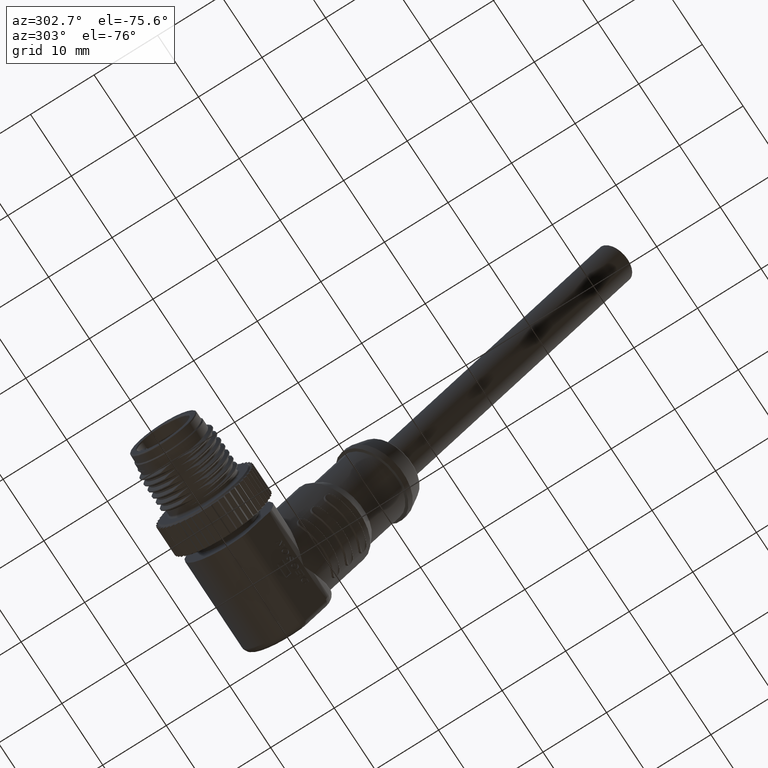
[diagram: clean part render]
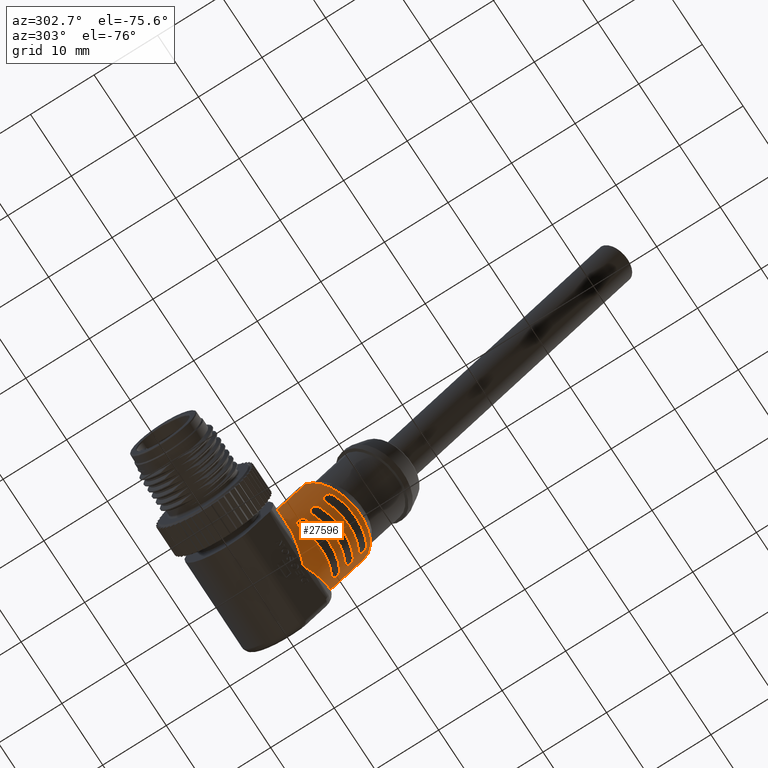
[diagram: same view with one face highlighted and labeled with its STEP entity id]
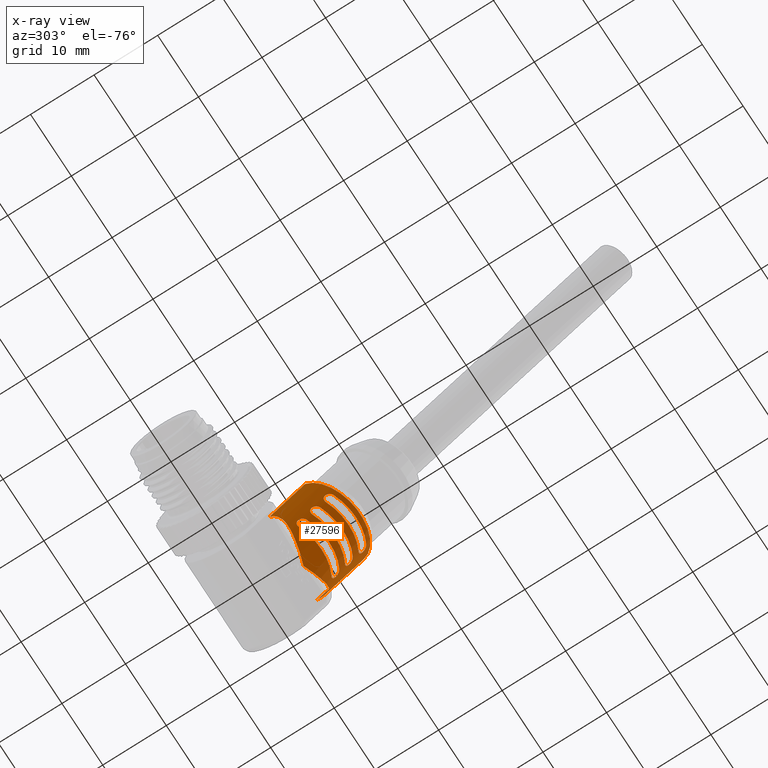
[diagram: x-ray of the same camera — body ghosted, the highlighted face saturated]
A machine part, auxiliary view. The second image highlights one B-rep face of the part: STEP entity #27596.
The next image is the same camera in x-ray: the body ghosted, the highlighted face saturated — about 0% of this face is hidden behind the body in this view.
In plain terms, the highlighted cylindrical surface (partial cylindrical patch) has radius 6.4 mm, axis along (0, -0.7071, 0.7071).
Its self-contained STEP definition (entity closure, byte-faithful):
#5581=CARTESIAN_POINT('',(2.106379701677E1,-6.706777544916E0,
-2.004777970267E0));
#5582=CARTESIAN_POINT('',(2.124758970223E1,-6.675542171109E0,
-2.109272685243E0));
#5583=CARTESIAN_POINT('',(2.162190139354E1,-6.596203580795E0,
-2.312919365202E0));
#5584=CARTESIAN_POINT('',(2.220776745059E1,-6.425941768573E0,
-2.599160807562E0));
#5585=CARTESIAN_POINT('',(2.260159718548E1,-6.283194560477E0,
-2.767772238710E0));
#5586=CARTESIAN_POINT('',(2.28E1,-6.204768961969E0,-2.846197837219E0));
#5596=CARTESIAN_POINT('',(1.64E1,-4.949747468306E0,4.949747468306E0));
#5597=CARTESIAN_POINT('',(1.64E1,-5.071610581378E0,4.827884355234E0));
#5598=CARTESIAN_POINT('',(1.641396668491E1,-5.307274914199E0,4.574156412381E0));
#5599=CARTESIAN_POINT('',(1.647723373911E1,-5.632945235219E0,4.166747536764E0));
#5600=CARTESIAN_POINT('',(1.658464871978E1,-5.931787065689E0,3.729439505394E0));
#5601=CARTESIAN_POINT('',(1.673811078773E1,-6.200731734331E0,3.263373732487E0));
#5602=CARTESIAN_POINT('',(1.694146451900E1,-6.438523613675E0,2.765733168702E0));
#5603=CARTESIAN_POINT('',(1.719842662722E1,-6.641202867373E0,2.237103298362E0));
#5604=CARTESIAN_POINT('',(1.751452082478E1,-6.804779979946E0,1.676670458424E0));
#5605=CARTESIAN_POINT('',(1.789178747652E1,-6.923190749345E0,1.091404134618E0));
#5606=CARTESIAN_POINT('',(1.833821247708E1,-6.992863410430E0,
4.804561207492E-1));
#5607=CARTESIAN_POINT('',(1.886095894772E1,-7.007555076917E0,
-1.486728500513E-1));
#5608=CARTESIAN_POINT('',(1.942556542731E1,-6.968185150515E0,
-7.421167531548E-1));
#5609=CARTESIAN_POINT('',(2.000150043526E1,-6.890347522086E0,
-1.266165576088E0));
#5610=CARTESIAN_POINT('',(2.056498272768E1,-6.794143214092E0,
-1.699904179540E0));
#5611=CARTESIAN_POINT('',(2.090289663993E1,-6.734122394922E0,
-1.913298600593E0));
#5612=CARTESIAN_POINT('',(2.106379701677E1,-6.706777544916E0,
-2.004777970267E0));
#5850=CARTESIAN_POINT('',(2.28E1,-6.204768961969E0,-2.846197837219E0));
#5851=CARTESIAN_POINT('',(2.299848508600E1,-6.283227081134E0,
-2.767739718053E0));
#5852=CARTESIAN_POINT('',(2.339242445813E1,-6.426006787350E0,
-2.599074367432E0));
#5853=CARTESIAN_POINT('',(2.397829343061E1,-6.596250782727E0,
-2.312817193523E0));
#5854=CARTESIAN_POINT('',(2.435249294623E1,-6.675556275075E0,
-2.109225565056E0));
#5855=CARTESIAN_POINT('',(2.453620275281E1,-6.706777559454E0,
-2.004777984805E0));
#5857=CARTESIAN_POINT('',(2.92E1,-4.242644279019E0,4.242637688462E0));
#5858=CARTESIAN_POINT('',(2.92E1,-4.245905503571E0,4.242238467038E0));
#5859=CARTESIAN_POINT('',(2.920000326813E1,-4.251254656587E0,4.238042791162E0));
#5860=CARTESIAN_POINT('',(2.919999346374E1,-4.252759458347E0,4.238771540832E0));
#5861=CARTESIAN_POINT('',(2.919999346374E1,-4.253160470095E0,4.235496145182E0));
#5863=CARTESIAN_POINT('',(2.919999346374E1,-4.253160470095E0,4.235496145182E0));
#5864=CARTESIAN_POINT('',(2.919957018367E1,-4.542576948639E0,4.109775078249E0));
#5865=CARTESIAN_POINT('',(2.915718343613E1,-5.078412244745E0,3.835406624438E0));
#5866=CARTESIAN_POINT('',(2.899855848405E1,-5.715818799077E0,3.379949833385E0));
#5867=CARTESIAN_POINT('',(2.876973085846E1,-6.207997215209E0,2.896251902885E0));
#5868=CARTESIAN_POINT('',(2.849400082429E1,-6.556118879097E0,2.392525240747E0));
#5869=CARTESIAN_POINT('',(2.829822411427E1,-6.694073037640E0,2.054456347680E0));
#5870=CARTESIAN_POINT('',(2.82E1,-6.741763290868E0,1.883780170271E0));
#5872=CARTESIAN_POINT('',(2.82E1,-6.741763290868E0,1.883780170271E0));
#5873=CARTESIAN_POINT('',(2.810412547372E1,-6.788312760620E0,1.717186683760E0));
#5874=CARTESIAN_POINT('',(2.789262172541E1,-6.872238351909E0,1.369736834348E0));
#5875=CARTESIAN_POINT('',(2.750298103768E1,-6.961957711232E0,
8.023916125648E-1));
#5876=CARTESIAN_POINT('',(2.705604025454E1,-7.004241760261E0,
2.250567305640E-1));
#5877=CARTESIAN_POINT('',(2.656310363177E1,-6.998971101590E0,
-3.401723223404E-1));
#5878=CARTESIAN_POINT('',(2.604116939611E1,-6.952034234843E0,
-8.684227422553E-1));
#5879=CARTESIAN_POINT('',(2.551116648388E1,-6.875893210456E0,
-1.336613062746E0));
#5880=CARTESIAN_POINT('',(2.499441241509E1,-6.786818369271E0,
-1.726305229894E0));
#5881=CARTESIAN_POINT('',(2.468368001586E1,-6.731841161964E0,
-1.920930292869E0));
#5882=CARTESIAN_POINT('',(2.453620275281E1,-6.706777559454E0,
-2.004777984805E0));
#5884=DIRECTION('',(2.384759056894E-13,-7.071067811865E-1,7.071067811865E-1));
#5885=VECTOR('',#5884,8.000000000001E0);
#5886=CARTESIAN_POINT('',(1.64E1,-4.949747468306E0,4.949747468306E0));
#5887=LINE('',#5886,#5885);
#5888=DIRECTION('',(2.115838467325E-13,7.071064150444E-1,-7.071071473285E-1));
#5889=VECTOR('',#5888,8.999999580517E0);
#5890=CARTESIAN_POINT('',(2.92E1,-1.060660171780E1,1.060660171780E1));
#5891=LINE('',#5890,#5889);
#5892=CARTESIAN_POINT('',(2.28E1,-1.060660171780E1,1.060660171780E1));
#5893=DIRECTION('',(0.E0,7.071067811865E-1,-7.071067811865E-1));
#5894=DIRECTION('',(1.E0,0.E0,0.E0));
#5895=AXIS2_PLACEMENT_3D('',#5892,#5893,#5894);
#6037=CARTESIAN_POINT('',(2.28E1,-6.646803743154E0,6.646803743154E0));
#6038=DIRECTION('',(0.E0,7.071067811865E-1,-7.071067811865E-1));
#6039=DIRECTION('',(6.207946932383E-1,-5.543527526978E-1,-5.543527526978E-1));
#6040=AXIS2_PLACEMENT_3D('',#6037,#6038,#6039);
#6096=CARTESIAN_POINT('',(2.28E1,-7.848885271171E0,7.848885271171E0));
#6097=DIRECTION('',(0.E0,-7.071067811865E-1,7.071067811865E-1));
#6098=DIRECTION('',(-6.207946932387E-1,-5.543527526976E-1,-5.543527526976E-1));
#6099=AXIS2_PLACEMENT_3D('',#6096,#6097,#6098);
#6106=CARTESIAN_POINT('',(1.882691396327E1,-1.019466136042E1,3.098946125888E0));
#6107=CARTESIAN_POINT('',(1.875666623159E1,-1.015532773803E1,3.138279782362E0));
#6108=CARTESIAN_POINT('',(1.862565567665E1,-1.009802556975E1,3.234286758147E0));
#6109=CARTESIAN_POINT('',(1.844829654239E1,-1.007089631908E1,3.431841998542E0));
#6110=CARTESIAN_POINT('',(1.831185625374E1,-1.011237913796E1,3.658747521453E0));
#6111=CARTESIAN_POINT('',(1.822486895062E1,-1.022211643811E1,3.892779713007E0));
#6112=CARTESIAN_POINT('',(1.819551911810E1,-1.039224796842E1,4.106022241937E0));
#6113=CARTESIAN_POINT('',(1.822563826090E1,-1.060574237299E1,4.275285003397E0));
#6114=CARTESIAN_POINT('',(1.831299026696E1,-1.083914749348E1,4.383936976312E0));
#6115=CARTESIAN_POINT('',(1.844918284699E1,-1.106492283170E1,4.424724135190E0));
#6116=CARTESIAN_POINT('',(1.862589743697E1,-1.126155497070E1,4.397539013220E0));
#6117=CARTESIAN_POINT('',(1.875673002715E1,-1.135744495292E1,4.340325555442E0));
#6118=CARTESIAN_POINT('',(1.882691396327E1,-1.139674288844E1,4.301027653905E0));
#6130=CARTESIAN_POINT('',(2.677308603672E1,-1.139674288844E1,4.301027653906E0));
#6131=CARTESIAN_POINT('',(2.684333376758E1,-1.135740923242E1,4.340361275822E0));
#6132=CARTESIAN_POINT('',(2.697434432130E1,-1.126140225785E1,4.397663443806E0));
#6133=CARTESIAN_POINT('',(2.715170345484E1,-1.106384701941E1,4.424792695248E0));
#6134=CARTESIAN_POINT('',(2.728814374401E1,-1.083694149750E1,4.383309877842E0));
#6135=CARTESIAN_POINT('',(2.737513104835E1,-1.060290930552E1,4.273572578900E0));
#6136=CARTESIAN_POINT('',(2.740448088201E1,-1.038966677506E1,4.103441048739E0));
#6137=CARTESIAN_POINT('',(2.737436173972E1,-1.022040401204E1,3.889946643349E0));
#6138=CARTESIAN_POINT('',(2.728700973354E1,-1.011175203821E1,3.656541521745E0));
#6139=CARTESIAN_POINT('',(2.715081715319E1,-1.007096487909E1,3.430766182808E0));
#6140=CARTESIAN_POINT('',(2.697410256297E1,-1.009815000112E1,3.234134043556E0));
#6141=CARTESIAN_POINT('',(2.684326997280E1,-1.015536345890E1,3.138244061366E0));
#6142=CARTESIAN_POINT('',(2.677308603673E1,-1.019466136042E1,3.098946125888E0));
#6172=CARTESIAN_POINT('',(2.28E1,-4.525483399594E0,4.525483399594E0));
#6173=DIRECTION('',(0.E0,7.071067811865E-1,-7.071067811865E-1));
#6174=DIRECTION('',(6.207946932380E-1,-5.543527526979E-1,-5.543527526979E-1));
#6175=AXIS2_PLACEMENT_3D('',#6172,#6173,#6174);
#6231=CARTESIAN_POINT('',(1.882691396327E1,-8.073341016860E0,
9.776257823280E-1));
#6232=CARTESIAN_POINT('',(1.875666623236E1,-8.034007394915E0,1.016959438380E0));
#6233=CARTESIAN_POINT('',(1.862565567850E1,-7.976705226852E0,1.112966413036E0));
#6234=CARTESIAN_POINT('',(1.844829654441E1,-7.949575975463E0,1.310521652262E0));
#6235=CARTESIAN_POINT('',(1.831185625509E1,-7.991058793436E0,1.537427175027E0));
#6236=CARTESIAN_POINT('',(1.822486895111E1,-8.100796093126E0,1.771459367287E0));
#6237=CARTESIAN_POINT('',(1.819551911803E1,-8.270927623634E0,1.984701897257E0));
#6238=CARTESIAN_POINT('',(1.822563826068E1,-8.484422028742E0,2.153964659464E0));
#6239=CARTESIAN_POINT('',(1.831299026674E1,-8.717827149430E0,2.262616632584E0));
#6240=CARTESIAN_POINT('',(1.844918284646E1,-8.943602487383E0,2.303403791571E0));
#6241=CARTESIAN_POINT('',(1.862589743618E1,-9.140234626443E0,2.276218669922E0));
#6242=CARTESIAN_POINT('',(1.875673002681E1,-9.236124609182E0,2.219005212095E0));
#6243=CARTESIAN_POINT('',(1.882691396328E1,-9.275422544877E0,2.179707310345E0));
#6250=CARTESIAN_POINT('',(2.28E1,-5.727564927611E0,5.727564927611E0));
#6251=DIRECTION('',(0.E0,-7.071067811865E-1,7.071067811865E-1));
#6252=DIRECTION('',(-6.207946932378E-1,-5.543527526981E-1,-5.543527526981E-1));
#6253=AXIS2_PLACEMENT_3D('',#6250,#6251,#6252);
#6293=CARTESIAN_POINT('',(2.677308603672E1,-9.275422544877E0,2.179707310345E0));
#6294=CARTESIAN_POINT('',(2.684333376771E1,-9.236088888790E0,2.219040932340E0));
#6295=CARTESIAN_POINT('',(2.697434432161E1,-9.140081914038E0,2.276343100362E0));
#6296=CARTESIAN_POINT('',(2.715170345526E1,-8.942526675305E0,2.303472351686E0));
#6297=CARTESIAN_POINT('',(2.728814374429E1,-8.715621153350E0,2.261989534074E0));
#6298=CARTESIAN_POINT('',(2.737513104836E1,-8.481588961766E0,2.152252235164E0));
#6299=CARTESIAN_POINT('',(2.740448088195E1,-8.268346431913E0,1.982120705501E0));
#6300=CARTESIAN_POINT('',(2.737436173996E1,-8.099083669231E0,1.768626300890E0));
#6301=CARTESIAN_POINT('',(2.728700973435E1,-7.990431695257E0,1.535221179924E0));
#6302=CARTESIAN_POINT('',(2.715081715453E1,-7.949644535585E0,1.309445841061E0));
#6303=CARTESIAN_POINT('',(2.697410256428E1,-7.976829657093E0,1.112813701103E0));
#6304=CARTESIAN_POINT('',(2.684326997335E1,-8.034043115015E0,1.016923718107E0));
#6305=CARTESIAN_POINT('',(2.677308603672E1,-8.073341016860E0,
9.776257823279E-1));
#6312=CARTESIAN_POINT('',(2.28E1,-8.768124086713E0,8.768124086713E0));
#6313=DIRECTION('',(0.E0,7.071067811865E-1,-7.071067811865E-1));
#6314=DIRECTION('',(6.207946932372E-1,-5.543527526984E-1,-5.543527526984E-1));
#6315=AXIS2_PLACEMENT_3D('',#6312,#6313,#6314);
#6371=CARTESIAN_POINT('',(1.882691396328E1,-1.231598170398E1,5.220266469446E0));
#6372=CARTESIAN_POINT('',(1.875666623174E1,-1.227664808169E1,5.259600125847E0));
#6373=CARTESIAN_POINT('',(1.862565567706E1,-1.221934591347E1,5.355607101387E0));
#6374=CARTESIAN_POINT('',(1.844829654315E1,-1.219221666267E1,5.553162341141E0));
#6375=CARTESIAN_POINT('',(1.831185625451E1,-1.223369948105E1,5.780067863471E0));
#6376=CARTESIAN_POINT('',(1.822486895106E1,-1.234343678062E1,6.014100054855E0));
#6377=CARTESIAN_POINT('',(1.819551911809E1,-1.251356831055E1,6.227342584076E0));
#6378=CARTESIAN_POINT('',(1.822563826048E1,-1.272706271502E1,6.396605346027E0));
#6379=CARTESIAN_POINT('',(1.831299026626E1,-1.296046783560E1,6.505257319415E0));
#6380=CARTESIAN_POINT('',(1.844918284606E1,-1.318624317403E1,6.546044478732E0));
#6381=CARTESIAN_POINT('',(1.862589743613E1,-1.338287531355E1,6.518859357070E0));
#6382=CARTESIAN_POINT('',(1.875673002681E1,-1.347876529632E1,6.461645899227E0));
#6383=CARTESIAN_POINT('',(1.882691396327E1,-1.351806323199E1,6.422347997467E0));
#6390=CARTESIAN_POINT('',(2.28E1,-9.970205614730E0,9.970205614730E0));
#6391=DIRECTION('',(0.E0,-7.071067811865E-1,7.071067811865E-1));
#6392=DIRECTION('',(-6.207946932397E-1,-5.543527526969E-1,-5.543527526969E-1));
#6393=AXIS2_PLACEMENT_3D('',#6390,#6391,#6392);
#6433=CARTESIAN_POINT('',(2.677308603673E1,-1.351806323200E1,6.422347997466E0));
#6434=CARTESIAN_POINT('',(2.684333376866E1,-1.347872957537E1,6.461681619982E0));
#6435=CARTESIAN_POINT('',(2.697434432386E1,-1.338272259925E1,6.518983788287E0));
#6436=CARTESIAN_POINT('',(2.715170345743E1,-1.318516735945E1,6.546113038700E0));
#6437=CARTESIAN_POINT('',(2.728814374564E1,-1.295826183759E1,6.504630220222E0));
#6438=CARTESIAN_POINT('',(2.737513104897E1,-1.272422964644E1,6.394892920732E0));
#6439=CARTESIAN_POINT('',(2.740448088194E1,-1.251098711707E1,6.224761390641E0));
#6440=CARTESIAN_POINT('',(2.737436173937E1,-1.234172435503E1,6.011266985836E0));
#6441=CARTESIAN_POINT('',(2.728700973338E1,-1.223307238177E1,5.777861865081E0));
#6442=CARTESIAN_POINT('',(2.715081715346E1,-1.219228522271E1,5.552086526789E0));
#6443=CARTESIAN_POINT('',(2.697410256352E1,-1.221947034451E1,5.355454387618E0));
#6444=CARTESIAN_POINT('',(2.684326997305E1,-1.227668380229E1,5.259564405047E0));
#6445=CARTESIAN_POINT('',(2.677308603672E1,-1.231598170398E1,5.220266469446E0));
#15685=CARTESIAN_POINT('',(2.28E1,-6.204768961969E0,-2.846197837219E0));
#15686=VERTEX_POINT('',#15685);
#16667=CARTESIAN_POINT('',(2.82E1,-6.741763290868E0,1.883780170271E0));
#16668=VERTEX_POINT('',#16667);
#16669=VERTEX_POINT('',#5863);
#16670=CARTESIAN_POINT('',(2.453620275281E1,-6.706777559454E0,
-2.004777984805E0));
#16671=VERTEX_POINT('',#16670);
#16672=VERTEX_POINT('',#5581);
#16673=VERTEX_POINT('',#5596);
#16674=CARTESIAN_POINT('',(1.64E1,-1.060660171780E1,1.060660171780E1));
#16675=VERTEX_POINT('',#16674);
#16676=CARTESIAN_POINT('',(2.92E1,-1.060660171780E1,1.060660171780E1));
#16677=VERTEX_POINT('',#16676);
#16678=CARTESIAN_POINT('',(2.92E1,-4.242644279019E0,4.242637688462E0));
#16679=VERTEX_POINT('',#16678);
#16680=CARTESIAN_POINT('',(2.677308603672E1,-1.019466136042E1,
3.098946125888E0));
#16681=CARTESIAN_POINT('',(1.882691396328E1,-1.019466136042E1,
3.098946125888E0));
#16682=VERTEX_POINT('',#16680);
#16683=VERTEX_POINT('',#16681);
#16684=VERTEX_POINT('',#6130);
#16685=CARTESIAN_POINT('',(1.882691396327E1,-1.139674288844E1,
4.301027653907E0));
#16686=VERTEX_POINT('',#16685);
#16687=CARTESIAN_POINT('',(2.677308603672E1,-8.073341016861E0,
9.776257823273E-1));
#16688=CARTESIAN_POINT('',(1.882691396328E1,-8.073341016861E0,
9.776257823273E-1));
#16689=VERTEX_POINT('',#16687);
#16690=VERTEX_POINT('',#16688);
#16691=VERTEX_POINT('',#6293);
#16692=CARTESIAN_POINT('',(1.882691396328E1,-9.275422544879E0,
2.179707310343E0));
#16693=VERTEX_POINT('',#16692);
#16694=CARTESIAN_POINT('',(2.677308603672E1,-1.231598170398E1,
5.220266469443E0));
#16695=CARTESIAN_POINT('',(1.882691396328E1,-1.231598170398E1,
5.220266469443E0));
#16696=VERTEX_POINT('',#16694);
#16697=VERTEX_POINT('',#16695);
#16698=VERTEX_POINT('',#6433);
#16699=CARTESIAN_POINT('',(1.882691396327E1,-1.351806323199E1,
6.422347997470E0));
#16700=VERTEX_POINT('',#16699);
#27549=CARTESIAN_POINT('',(2.28E1,9.899494936612E-1,-9.899494936612E-1));
#27550=DIRECTION('',(0.E0,-7.071067811865E-1,7.071067811865E-1));
#27551=DIRECTION('',(-1.E0,0.E0,0.E0));
#27552=AXIS2_PLACEMENT_3D('',#27549,#27550,#27551);
#27553=CYLINDRICAL_SURFACE('',#27552,6.4E0);
#27554=ORIENTED_EDGE('',*,*,#27437,.T.);
#27555=ORIENTED_EDGE('',*,*,#27517,.T.);
#27556=ORIENTED_EDGE('',*,*,#27530,.T.);
#27557=ORIENTED_EDGE('',*,*,#27542,.F.);
#27558=ORIENTED_EDGE('',*,*,#27269,.F.);
#27559=ORIENTED_EDGE('',*,*,#27284,.F.);
#27560=ORIENTED_EDGE('',*,*,#27321,.T.);
#27562=ORIENTED_EDGE('',*,*,#27561,.F.);
#27563=ORIENTED_EDGE('',*,*,#27317,.T.);
#27564=EDGE_LOOP('',(#27554,#27555,#27556,#27557,#27558,#27559,#27560,#27562,
#27563));
#27565=FACE_OUTER_BOUND('',#27564,.F.);
#27567=ORIENTED_EDGE('',*,*,#27566,.F.);
#27569=ORIENTED_EDGE('',*,*,#27568,.F.);
#27571=ORIENTED_EDGE('',*,*,#27570,.F.);
#27573=ORIENTED_EDGE('',*,*,#27572,.F.);
#27574=EDGE_LOOP('',(#27567,#27569,#27571,#27573));
#27575=FACE_BOUND('',#27574,.F.);
#27577=ORIENTED_EDGE('',*,*,#27576,.F.);
#27579=ORIENTED_EDGE('',*,*,#27578,.F.);
#27581=ORIENTED_EDGE('',*,*,#27580,.F.);
#27583=ORIENTED_EDGE('',*,*,#27582,.F.);
#27584=EDGE_LOOP('',(#27577,#27579,#27581,#27583));
#27585=FACE_BOUND('',#27584,.F.);
#27587=ORIENTED_EDGE('',*,*,#27586,.F.);
#27589=ORIENTED_EDGE('',*,*,#27588,.F.);
#27591=ORIENTED_EDGE('',*,*,#27590,.F.);
#27593=ORIENTED_EDGE('',*,*,#27592,.F.);
#27594=EDGE_LOOP('',(#27587,#27589,#27591,#27593));
#27595=FACE_BOUND('',#27594,.F.);
#27596=ADVANCED_FACE('',(#27565,#27575,#27585,#27595),#27553,.T.);
#5587=B_SPLINE_CURVE_WITH_KNOTS('',3,(#5581,#5582,#5583,#5584,#5585,#5586),
.UNSPECIFIED.,.F.,.F.,(4,1,1,4),(0.E0,3.333333333333E-1,6.666666666667E-1,1.E0),
.UNSPECIFIED.);
#5613=B_SPLINE_CURVE_WITH_KNOTS('',3,(#5596,#5597,#5598,#5599,#5600,#5601,#5602,
#5603,#5604,#5605,#5606,#5607,#5608,#5609,#5610,#5611,#5612),.UNSPECIFIED.,.F.,
.F.,(4,1,1,1,1,1,1,1,1,1,1,1,1,1,4),(0.E0,7.142857142857E-2,1.428571428571E-1,
2.142857142857E-1,2.857142857143E-1,3.571428571429E-1,4.285714285714E-1,5.E-1,
5.714285714286E-1,6.428571428571E-1,7.142857142857E-1,7.857142857143E-1,
8.571428571429E-1,9.285714285714E-1,1.E0),.UNSPECIFIED.);
#5856=B_SPLINE_CURVE_WITH_KNOTS('',3,(#5850,#5851,#5852,#5853,#5854,#5855),
.UNSPECIFIED.,.F.,.F.,(4,1,1,4),(0.E0,3.333333333333E-1,6.666666666667E-1,1.E0),
.UNSPECIFIED.);
#5862=B_SPLINE_CURVE_WITH_KNOTS('',3,(#5857,#5858,#5859,#5860,#5861),
.UNSPECIFIED.,.F.,.F.,(4,1,4),(0.E0,5.E-1,1.E0),.UNSPECIFIED.);
#5871=B_SPLINE_CURVE_WITH_KNOTS('',3,(#5863,#5864,#5865,#5866,#5867,#5868,#5869,
#5870),.UNSPECIFIED.,.F.,.F.,(4,1,1,1,1,4),(0.E0,2.E-1,4.E-1,6.E-1,8.E-1,1.E0),
.UNSPECIFIED.);
#5883=B_SPLINE_CURVE_WITH_KNOTS('',3,(#5872,#5873,#5874,#5875,#5876,#5877,#5878,
#5879,#5880,#5881,#5882),.UNSPECIFIED.,.F.,.F.,(4,1,1,1,1,1,1,1,4),(0.E0,
1.25E-1,2.5E-1,3.75E-1,5.E-1,6.25E-1,7.5E-1,8.75E-1,1.E0),.UNSPECIFIED.);
#5896=CIRCLE('',#5895,6.399999999996E0);
#6041=CIRCLE('',#6040,6.4E0);
#6100=CIRCLE('',#6099,6.4E0);
#6119=B_SPLINE_CURVE_WITH_KNOTS('',3,(#6106,#6107,#6108,#6109,#6110,#6111,#6112,
#6113,#6114,#6115,#6116,#6117,#6118),.UNSPECIFIED.,.F.,.F.,(4,1,1,1,1,1,1,1,1,1,
4),(0.E0,1.E-1,2.E-1,3.E-1,4.E-1,5.E-1,6.E-1,7.E-1,8.E-1,9.E-1,1.E0),
.UNSPECIFIED.);
#6143=B_SPLINE_CURVE_WITH_KNOTS('',3,(#6130,#6131,#6132,#6133,#6134,#6135,#6136,
#6137,#6138,#6139,#6140,#6141,#6142),.UNSPECIFIED.,.F.,.F.,(4,1,1,1,1,1,1,1,1,1,
4),(0.E0,1.E-1,2.E-1,3.E-1,4.E-1,5.E-1,6.E-1,7.E-1,8.E-1,9.E-1,1.E0),
.UNSPECIFIED.);
#6176=CIRCLE('',#6175,6.4E0);
#6244=B_SPLINE_CURVE_WITH_KNOTS('',3,(#6231,#6232,#6233,#6234,#6235,#6236,#6237,
#6238,#6239,#6240,#6241,#6242,#6243),.UNSPECIFIED.,.F.,.F.,(4,1,1,1,1,1,1,1,1,1,
4),(0.E0,1.E-1,2.E-1,3.E-1,4.E-1,5.E-1,6.E-1,7.E-1,8.E-1,9.E-1,1.E0),
.UNSPECIFIED.);
#6254=CIRCLE('',#6253,6.4E0);
#6306=B_SPLINE_CURVE_WITH_KNOTS('',3,(#6293,#6294,#6295,#6296,#6297,#6298,#6299,
#6300,#6301,#6302,#6303,#6304,#6305),.UNSPECIFIED.,.F.,.F.,(4,1,1,1,1,1,1,1,1,1,
4),(0.E0,1.E-1,2.E-1,3.E-1,4.E-1,5.E-1,6.E-1,7.E-1,8.E-1,9.E-1,1.E0),
.UNSPECIFIED.);
#6316=CIRCLE('',#6315,6.4E0);
#6384=B_SPLINE_CURVE_WITH_KNOTS('',3,(#6371,#6372,#6373,#6374,#6375,#6376,#6377,
#6378,#6379,#6380,#6381,#6382,#6383),.UNSPECIFIED.,.F.,.F.,(4,1,1,1,1,1,1,1,1,1,
4),(0.E0,1.E-1,2.E-1,3.E-1,4.E-1,5.E-1,6.E-1,7.E-1,8.E-1,9.E-1,1.E0),
.UNSPECIFIED.);
#6394=CIRCLE('',#6393,6.4E0);
#6446=B_SPLINE_CURVE_WITH_KNOTS('',3,(#6433,#6434,#6435,#6436,#6437,#6438,#6439,
#6440,#6441,#6442,#6443,#6444,#6445),.UNSPECIFIED.,.F.,.F.,(4,1,1,1,1,1,1,1,1,1,
4),(0.E0,1.E-1,2.E-1,3.E-1,4.E-1,5.E-1,6.E-1,7.E-1,8.E-1,9.E-1,1.E0),
.UNSPECIFIED.);
#27269=EDGE_CURVE('',#16672,#15686,#5587,.T.);
#27284=EDGE_CURVE('',#16673,#16672,#5613,.T.);
#27317=EDGE_CURVE('',#16677,#16679,#5891,.T.);
#27321=EDGE_CURVE('',#16673,#16675,#5887,.T.);
#27437=EDGE_CURVE('',#16679,#16669,#5862,.T.);
#27517=EDGE_CURVE('',#16669,#16668,#5871,.T.);
#27530=EDGE_CURVE('',#16668,#16671,#5883,.T.);
#27542=EDGE_CURVE('',#15686,#16671,#5856,.T.);
#27561=EDGE_CURVE('',#16677,#16675,#5896,.T.);
#27566=EDGE_CURVE('',#16682,#16683,#6041,.T.);
#27568=EDGE_CURVE('',#16684,#16682,#6143,.T.);
#27570=EDGE_CURVE('',#16686,#16684,#6100,.T.);
#27572=EDGE_CURVE('',#16683,#16686,#6119,.T.);
#27576=EDGE_CURVE('',#16689,#16690,#6176,.T.);
#27578=EDGE_CURVE('',#16691,#16689,#6306,.T.);
#27580=EDGE_CURVE('',#16693,#16691,#6254,.T.);
#27582=EDGE_CURVE('',#16690,#16693,#6244,.T.);
#27586=EDGE_CURVE('',#16696,#16697,#6316,.T.);
#27588=EDGE_CURVE('',#16698,#16696,#6446,.T.);
#27590=EDGE_CURVE('',#16700,#16698,#6394,.T.);
#27592=EDGE_CURVE('',#16697,#16700,#6384,.T.);